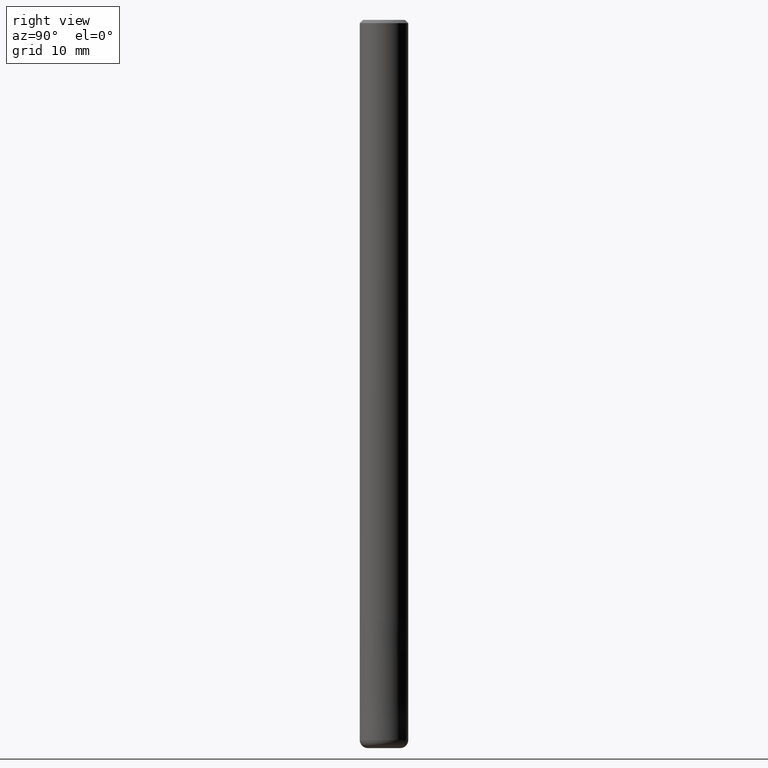
[diagram: clean part render]
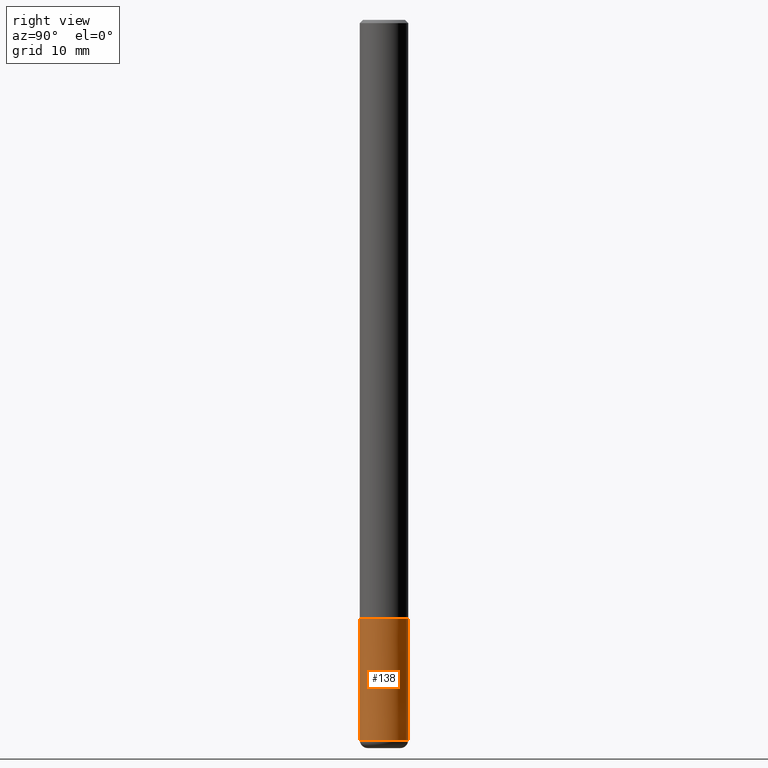
[diagram: same view with one face highlighted and labeled with its STEP entity id]
A machine part, right view. The second image highlights one B-rep face of the part: STEP entity #138.
In plain terms, the highlighted conical surface has half-angle 0 deg.
Its self-contained STEP definition (entity closure, byte-faithful):
#74=VERTEX_POINT('',#178);
#78=VERTEX_POINT('',#183);
#86=EDGE_CURVE('',#114,#106,#192,.T.);
#106=VERTEX_POINT('',#215);
#108=EDGE_CURVE('',#78,#74,#217,.T.);
#114=VERTEX_POINT('',#223);
#128=EDGE_CURVE('',#114,#78,#238,.T.);
#132=EDGE_CURVE('',#74,#106,#243,.T.);
#138=ADVANCED_FACE('',(#249),#250,.T.);
#178=CARTESIAN_POINT('',(3.67381906146713E-016,-3.0,-89.0));
#183=CARTESIAN_POINT('',(0.0,3.0,-89.0));
#192=CIRCLE('',#300,2.9999);
#215=CARTESIAN_POINT('',(3.67369660083175E-016,-2.9999,-74.0));
#217=CIRCLE('',#332,3.0);
#223=CARTESIAN_POINT('',(0.0,2.9999,-74.0));
#238=LINE('',#360,#361);
#243=LINE('',#367,#368);
#249=FACE_OUTER_BOUND('',#376,.T.);
#250=CONICAL_SURFACE('',#377,2.99995,6.66666666658197E-006);
#300=AXIS2_PLACEMENT_3D('',#419,#420,#421);
#332=AXIS2_PLACEMENT_3D('',#452,#453,#454);
#360=CARTESIAN_POINT('',(-3.67375783114944E-016,2.99995,-81.5));
#361=VECTOR('',#476,1.0);
#367=CARTESIAN_POINT('',(3.67375783114944E-016,-2.99995,-81.5));
#368=VECTOR('',#485,1.0);
#376=EDGE_LOOP('',(#493,#494,#495,#496));
#377=AXIS2_PLACEMENT_3D('',#497,#498,#499);
#419=CARTESIAN_POINT('',(0.0,0.0,-74.0));
#420=DIRECTION('',(0.0,0.0,-1.0));
#421=DIRECTION('',(0.0,1.0,0.0));
#452=CARTESIAN_POINT('',(0.0,0.0,-89.0));
#453=DIRECTION('',(0.0,0.0,-1.0));
#454=DIRECTION('',(0.0,1.0,0.0));
#476=DIRECTION('',(-8.16404235865165E-022,6.66666666653259E-006,-0.999999999977778));
#485=DIRECTION('',(-8.16404235865165E-022,6.66666666653259E-006,0.999999999977778));
#493=ORIENTED_EDGE('',*,*,#128,.F.);
#494=ORIENTED_EDGE('',*,*,#86,.T.);
#495=ORIENTED_EDGE('',*,*,#132,.F.);
#496=ORIENTED_EDGE('',*,*,#108,.F.);
#497=CARTESIAN_POINT('',(0.0,0.0,-81.5));
#498=DIRECTION('',(0.0,-0.0,-1.0));
#499=DIRECTION('',(0.0,1.0,0.0));